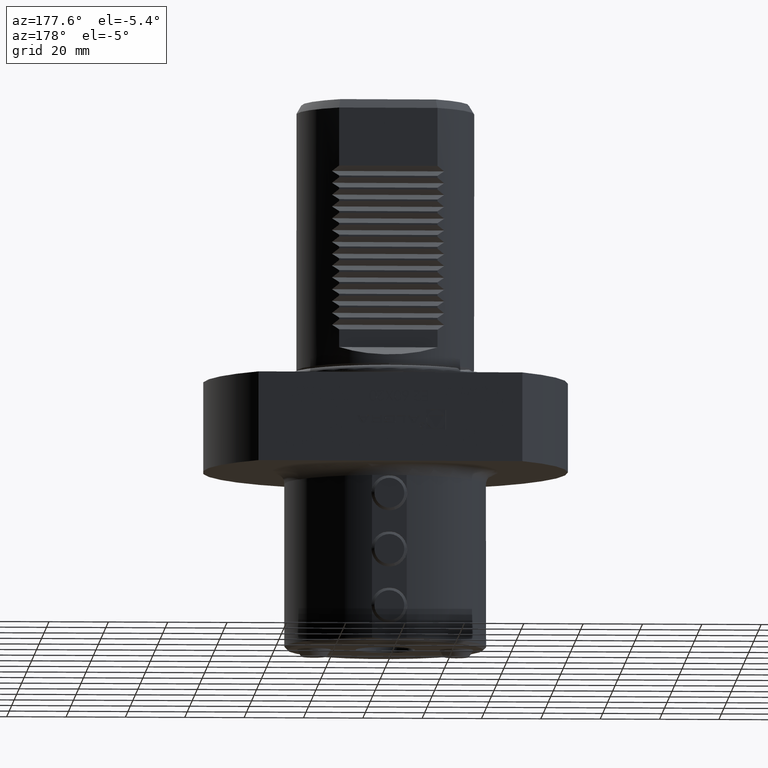
[diagram: clean part render]
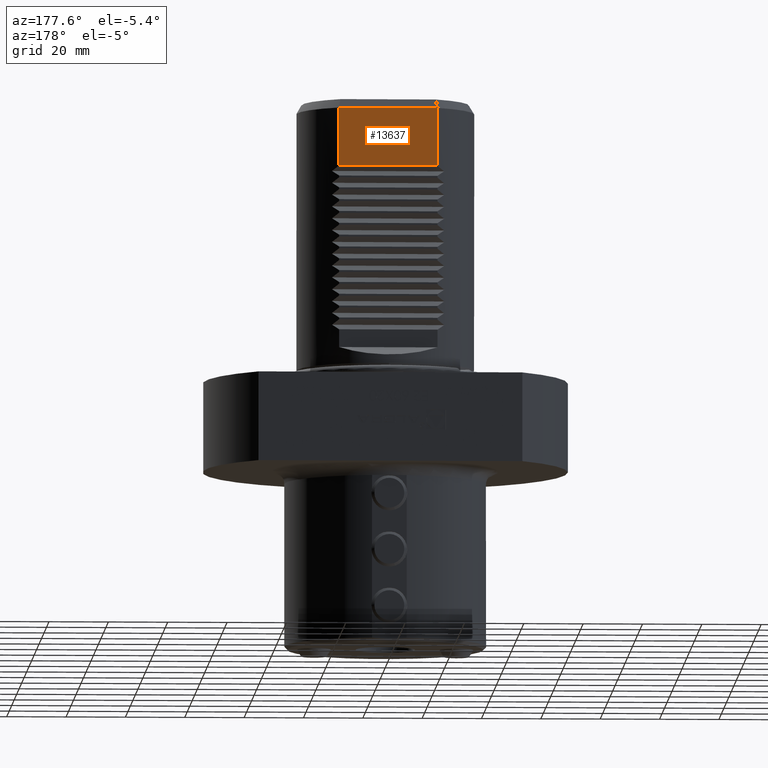
[diagram: same view with one face highlighted and labeled with its STEP entity id]
A machine part, auxiliary view. The second image highlights one B-rep face of the part: STEP entity #13637.
In plain terms, the highlighted planar face has unit normal (-0, -1, 0).
Its self-contained STEP definition (entity closure, byte-faithful):
#109 = ORIENTED_EDGE ( 'NONE', *, *, #9642, .F. ) ;
#249 = ORIENTED_EDGE ( 'NONE', *, *, #9866, .T. ) ;
#612 = LINE ( 'NONE', #11192, #2168 ) ;
#742 = DIRECTION ( 'NONE',  ( -1.000000000000000000, 4.440892098500630106E-16, 2.220446049250309876E-16 ) ) ;
#911 = PLANE ( 'NONE',  #11957 ) ;
#1110 = CARTESIAN_POINT ( 'NONE',  ( 16.58312395177700083, 25.00000000000000000, 91.00000000000000000 ) ) ;
#1543 = FACE_OUTER_BOUND ( 'NONE', #11039, .T. ) ;
#1627 = LINE ( 'NONE', #14574, #9094 ) ;
#1929 = VERTEX_POINT ( 'NONE', #3273 ) ;
#2168 = VECTOR ( 'NONE', #7652, 1000.000000000000000 ) ;
#2245 = VERTEX_POINT ( 'NONE', #6345 ) ;
#2741 = DIRECTION ( 'NONE',  ( 2.220446049250309876E-16, 9.860761315262649757E-32, 1.000000000000000000 ) ) ;
#3273 = CARTESIAN_POINT ( 'NONE',  ( -16.58312395177700083, 25.00000000000000000, 71.40000000000000568 ) ) ;
#3866 = DIRECTION ( 'NONE',  ( -1.000000000000000000, 4.440892098500630106E-16, 0.000000000000000000 ) ) ;
#4388 = VERTEX_POINT ( 'NONE', #1110 ) ;
#5877 = CARTESIAN_POINT ( 'NONE',  ( -16.58312395177700083, 25.00000000000000000, 47.00000000000000000 ) ) ;
#6345 = CARTESIAN_POINT ( 'NONE',  ( -16.58312395177700083, 25.00000000000000000, 91.00000000000000000 ) ) ;
#6840 = EDGE_CURVE ( 'NONE', #4388, #2245, #1627, .T. ) ;
#7218 = EDGE_CURVE ( 'NONE', #2245, #1929, #10397, .T. ) ;
#7329 = CARTESIAN_POINT ( 'NONE',  ( 16.58312395177700083, 25.00000000000000000, 47.00000000000000000 ) ) ;
#7652 = DIRECTION ( 'NONE',  ( -1.000000000000000000, 4.440892098500630106E-16, 2.220446049250309876E-16 ) ) ;
#8516 = DIRECTION ( 'NONE',  ( -4.440892098500630106E-16, -1.000000000000000000, 1.972152263052529951E-31 ) ) ;
#9094 = VECTOR ( 'NONE', #742, 1000.000000000000000 ) ;
#9642 = EDGE_CURVE ( 'NONE', #13036, #4388, #10633, .T. ) ;
#9866 = EDGE_CURVE ( 'NONE', #13036, #1929, #612, .T. ) ;
#10397 = LINE ( 'NONE', #5877, #13884 ) ;
#10633 = LINE ( 'NONE', #7329, #11784 ) ;
#10955 = CARTESIAN_POINT ( 'NONE',  ( 16.58312395177700083, 25.00000000000000000, 71.40000000000000568 ) ) ;
#11039 = EDGE_LOOP ( 'NONE', ( #14208, #109, #249, #12595 ) ) ;
#11192 = CARTESIAN_POINT ( 'NONE',  ( 2.695621503789879891E-14, 25.00000000000000000, 71.40000000000000568 ) ) ;
#11602 = DIRECTION ( 'NONE',  ( -2.220446049250309876E-16, -9.860761315262649757E-32, -1.000000000000000000 ) ) ;
#11784 = VECTOR ( 'NONE', #2741, 1000.000000000000000 ) ;
#11957 = AXIS2_PLACEMENT_3D ( 'NONE', #14387, #8516, #3866 ) ;
#12595 = ORIENTED_EDGE ( 'NONE', *, *, #7218, .F. ) ;
#13036 = VERTEX_POINT ( 'NONE', #10955 ) ;
#13637 = ADVANCED_FACE ( 'Defeature completata1_53', ( #1543 ), #911, .F. ) ;
#13884 = VECTOR ( 'NONE', #11602, 1000.000000000000000 ) ;
#14208 = ORIENTED_EDGE ( 'NONE', *, *, #6840, .F. ) ;
#14387 = CARTESIAN_POINT ( 'NONE',  ( 1.332267629550189900E-14, 25.00000000000000000, 10.00000000000000000 ) ) ;
#14574 = CARTESIAN_POINT ( 'NONE',  ( 3.130828929442940182E-14, 25.00000000000000000, 91.00000000000000000 ) ) ;